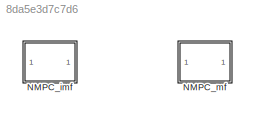
MODEL slx_8da5e3d7c7d6
KIND model
CONFIG AbsTol = auto
CONFIG EnableMultiTasking = on
CONFIG FixedStep = 1
CONFIG MaxStep = auto
CONFIG MinStep = auto
CONFIG RelTol = 1e-3
CONFIG SampleTimeConstraint = Unconstrained
CONFIG SolverName = ode45
CONFIG StartTime = 0.0
CONFIG StopTime = 10
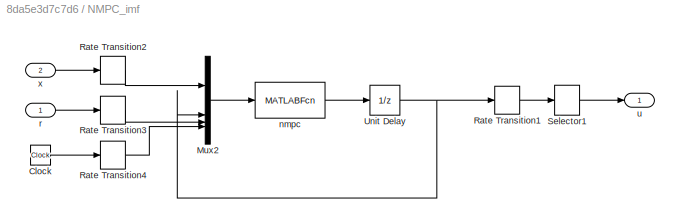
BLOCK [SubSystem] NMPC_imf
BLOCK [Clock] NMPC_imf/Clock
BLOCK [Mux] NMPC_imf/Mux2
  DisplayOption = bar
BLOCK [RateTransition] NMPC_imf/Rate Transition1
  OutPortSampleTime = K.Ts
BLOCK [RateTransition] NMPC_imf/Rate Transition2
  OutPortSampleTime = K.Ts
BLOCK [RateTransition] NMPC_imf/Rate Transition3
  OutPortSampleTime = K.Ts
BLOCK [RateTransition] NMPC_imf/Rate Transition4
  OutPortSampleTime = K.Ts
BLOCK [Selector] NMPC_imf/Selector1
  IndexOptions = Index vector (dialog)
  Indices = 1:K.nu
  InputPortWidth = K.nc
  OutputSizes = 1
BLOCK [UnitDelay] NMPC_imf/Unit Delay
  HasFrameUpgradeWarning = on
  InitialCondition = zeros(K.nc,1)
  NameLocation = top
  SampleTime = K.Ts
BLOCK [MATLABFcn] NMPC_imf/nmpc
  MATLABFcn = nmpc_st2(K,u(1:K.nx),u(K.nx+1:K.nx+K.nc),u(K.nx+K.nc+1:end-1),u(end))
  OutputDimensions = K.nc
BLOCK [Inport] NMPC_imf/r
BLOCK [Outport] NMPC_imf/u
  PortDimensions = K.nu
BLOCK [Inport] NMPC_imf/x
  Port = 2
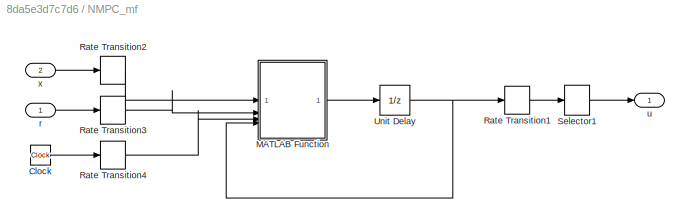
BLOCK [SubSystem] NMPC_mf
BLOCK [Clock] NMPC_mf/Clock
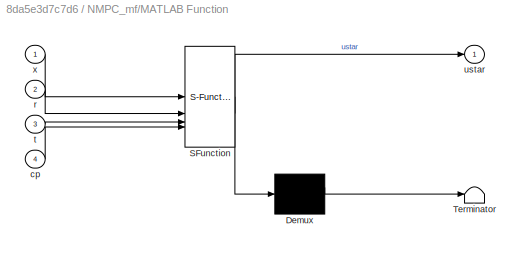
BLOCK [SubSystem] NMPC_mf/MATLAB Function
  ErrorFcn = Stateflow.Translate.translate
  PermitHierarchicalResolution = ExplicitOnly
  SFBlockType = MATLAB Function
  TreatAsAtomicUnit = on
BLOCK [Demux] NMPC_mf/MATLAB Function/ Demux 
  Outputs = 1
BLOCK [S-Function] NMPC_mf/MATLAB Function/ SFunction 
  EnableBusSupport = off
  FunctionName = sf_sfun
  Parameters = K
  PortCounts = [4 2]
  SFcnIsStateOwnerBlock = off
  SFunctionDeploymentMode = off
  Tag = Stateflow S-Function 1
BLOCK [Terminator] NMPC_mf/MATLAB Function/ Terminator 
BLOCK [Inport] NMPC_mf/MATLAB Function/cp
  Port = 4
BLOCK [Inport] NMPC_mf/MATLAB Function/r
  Port = 2
BLOCK [Inport] NMPC_mf/MATLAB Function/t
  Port = 3
BLOCK [Outport] NMPC_mf/MATLAB Function/ustar
BLOCK [Inport] NMPC_mf/MATLAB Function/x
BLOCK [RateTransition] NMPC_mf/Rate Transition1
  OutPortSampleTime = K.Ts
BLOCK [RateTransition] NMPC_mf/Rate Transition2
  OutPortSampleTime = K.Ts
BLOCK [RateTransition] NMPC_mf/Rate Transition3
  OutPortSampleTime = K.Ts
BLOCK [RateTransition] NMPC_mf/Rate Transition4
  OutPortSampleTime = K.Ts
BLOCK [Selector] NMPC_mf/Selector1
  IndexOptions = Index vector (dialog)
  Indices = 1:K.nu
  InputPortWidth = K.nc
  OutputSizes = 1
BLOCK [UnitDelay] NMPC_mf/Unit Delay
  HasFrameUpgradeWarning = on
  InitialCondition = zeros(K.nc,1)
  NameLocation = top
  SampleTime = K.Ts
BLOCK [Inport] NMPC_mf/r
BLOCK [Outport] NMPC_mf/u
  PortDimensions = K.nu
BLOCK [Inport] NMPC_mf/x
  Port = 2
LINE NMPC_imf/Clock:1 -> NMPC_imf/Rate Transition4:1
LINE NMPC_imf/Mux2:1 -> NMPC_imf/nmpc:1
LINE NMPC_imf/Rate Transition1:1 -> NMPC_imf/Selector1:1
LINE NMPC_imf/Rate Transition2:1 -> NMPC_imf/Mux2:1
LINE NMPC_imf/Rate Transition3:1 -> NMPC_imf/Mux2:3
LINE NMPC_imf/Rate Transition4:1 -> NMPC_imf/Mux2:4
LINE NMPC_imf/Selector1:1 -> NMPC_imf/u:1
NET NMPC_imf/Unit Delay:1 -> NMPC_imf/Mux2:2, NMPC_imf/Rate Transition1:1
LINE NMPC_imf/nmpc:1 -> NMPC_imf/Unit Delay:1
LINE NMPC_imf/r:1 -> NMPC_imf/Rate Transition3:1
LINE NMPC_imf/x:1 -> NMPC_imf/Rate Transition2:1
LINE NMPC_mf/Clock:1 -> NMPC_mf/Rate Transition4:1
LINE NMPC_mf/MATLAB Function:1 -> NMPC_mf/Unit Delay:1
LINE NMPC_mf/Rate Transition1:1 -> NMPC_mf/Selector1:1
LINE NMPC_mf/Rate Transition2:1 -> NMPC_mf/MATLAB Function:1
LINE NMPC_mf/Rate Transition3:1 -> NMPC_mf/MATLAB Function:2
LINE NMPC_mf/Rate Transition4:1 -> NMPC_mf/MATLAB Function:3
LINE NMPC_mf/Selector1:1 -> NMPC_mf/u:1
NET NMPC_mf/Unit Delay:1 -> NMPC_mf/MATLAB Function:4, NMPC_mf/Rate Transition1:1
LINE NMPC_mf/r:1 -> NMPC_mf/Rate Transition3:1
LINE NMPC_mf/x:1 -> NMPC_mf/Rate Transition2:1
note: NET lines group one-source signal fan-out (src -> all destinations, sorted); 1:1 wires keep LINE
CHART NMPC_mf/MATLAB Function states=1 transitions=1
  STATE_LABEL 'eML_blk_kernel()'
  STATE_LABEL 'SCRIPT:\nfunction ustar=fcn(K,x,r,t,cp)\n\nustar=nmpc_st2(K,x,cp,r,t);\n\n'
CHART  states=0 transitions=0
